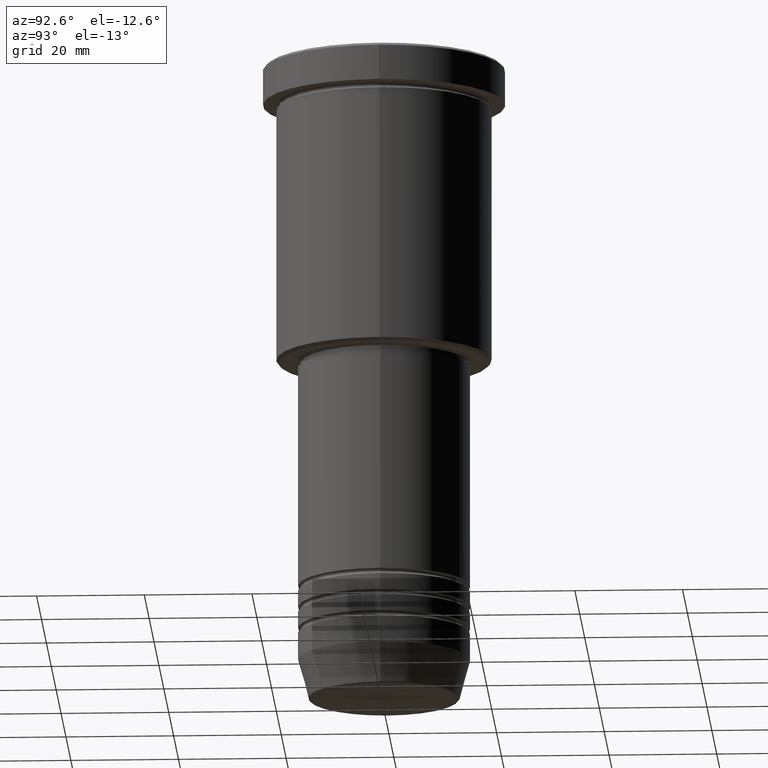
[diagram: clean part render]
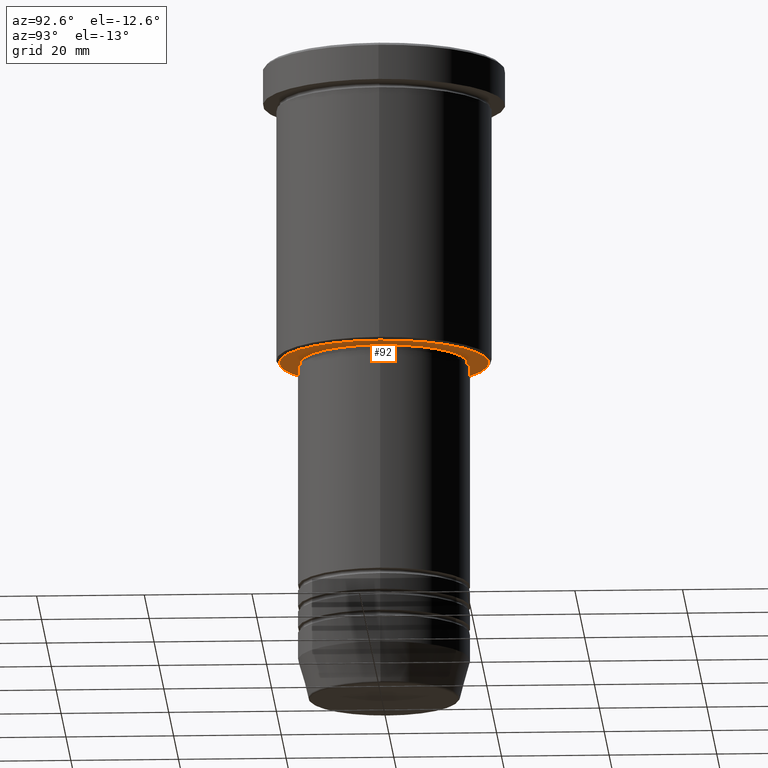
[diagram: same view with one face highlighted and labeled with its STEP entity id]
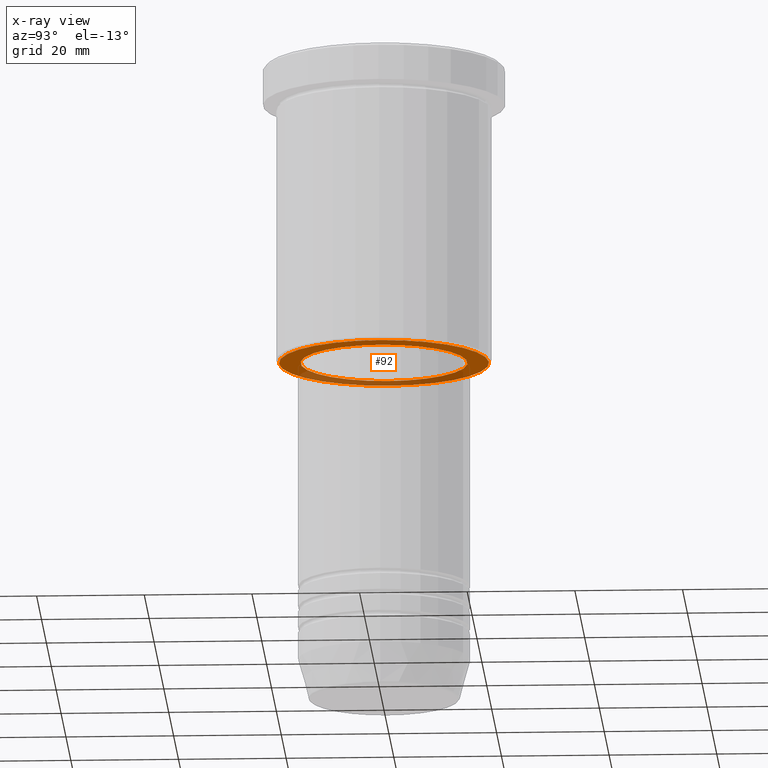
[diagram: x-ray of the same camera — body ghosted, the highlighted face saturated]
A machine part, auxiliary view. The second image highlights one B-rep face of the part: STEP entity #92.
The next image is the same camera in x-ray: the body ghosted, the highlighted face saturated — about 33% of this face is hidden behind the body in this view.
In plain terms, the highlighted planar face has unit normal (0, 0, -1).
Its self-contained STEP definition (entity closure, byte-faithful):
#23 = EDGE_LOOP ( 'NONE', ( #900, #994 ) ) ;
#33 = VERTEX_POINT ( 'NONE', #717 ) ;
#71 = DIRECTION ( 'NONE',  ( 0.000000000000000000, 0.000000000000000000, -1.000000000000000000 ) ) ;
#75 = AXIS2_PLACEMENT_3D ( 'NONE', #1021, #394, #848 ) ;
#83 = CARTESIAN_POINT ( 'NONE',  ( 0.000000000000000000, 20.00000000000000355, -56.00000000000000711 ) ) ;
#92 = ADVANCED_FACE ( 'NONE', ( #489, #568 ), #1124, .T. ) ;
#95 = AXIS2_PLACEMENT_3D ( 'NONE', #247, #1047, #695 ) ;
#112 = DIRECTION ( 'NONE',  ( -1.000000000000000000, 0.000000000000000000, -0.000000000000000000 ) ) ;
#121 = CARTESIAN_POINT ( 'NONE',  ( -19.50000000000000355, 2.418677428316023120E-15, -56.00000000000000711 ) ) ;
#149 = CIRCLE ( 'NONE', #75, 15.50000000000000000 ) ;
#164 = DIRECTION ( 'NONE',  ( -1.000000000000000000, 0.000000000000000000, 0.000000000000000000 ) ) ;
#172 = ORIENTED_EDGE ( 'NONE', *, *, #731, .T. ) ;
#188 = CARTESIAN_POINT ( 'NONE',  ( -15.50000000000000000, 1.898202538678397557E-15, -56.00000000000000711 ) ) ;
#215 = EDGE_LOOP ( 'NONE', ( #172, #613 ) ) ;
#230 = EDGE_CURVE ( 'NONE', #806, #33, #1008, .T. ) ;
#237 = EDGE_CURVE ( 'NONE', #959, #405, #149, .T. ) ;
#247 = CARTESIAN_POINT ( 'NONE',  ( 0.000000000000000000, 0.000000000000000000, -56.00000000000000711 ) ) ;
#365 = AXIS2_PLACEMENT_3D ( 'NONE', #83, #1017, #112 ) ;
#394 = DIRECTION ( 'NONE',  ( -0.000000000000000000, -0.000000000000000000, 1.000000000000000000 ) ) ;
#405 = VERTEX_POINT ( 'NONE', #188 ) ;
#489 = FACE_OUTER_BOUND ( 'NONE', #215, .T. ) ;
#568 = FACE_BOUND ( 'NONE', #23, .T. ) ;
#604 = EDGE_CURVE ( 'NONE', #405, #959, #826, .T. ) ;
#613 = ORIENTED_EDGE ( 'NONE', *, *, #230, .T. ) ;
#659 = CARTESIAN_POINT ( 'NONE',  ( 0.000000000000000000, 0.000000000000000000, -56.00000000000000711 ) ) ;
#695 = DIRECTION ( 'NONE',  ( 1.000000000000000000, 0.000000000000000000, 0.000000000000000000 ) ) ;
#717 = CARTESIAN_POINT ( 'NONE',  ( 19.50000000000000355, 0.000000000000000000, -56.00000000000000711 ) ) ;
#731 = EDGE_CURVE ( 'NONE', #33, #806, #868, .T. ) ;
#806 = VERTEX_POINT ( 'NONE', #121 ) ;
#821 = DIRECTION ( 'NONE',  ( 0.000000000000000000, 0.000000000000000000, -1.000000000000000000 ) ) ;
#826 = CIRCLE ( 'NONE', #95, 15.50000000000000000 ) ;
#848 = DIRECTION ( 'NONE',  ( 1.000000000000000000, 0.000000000000000000, 0.000000000000000000 ) ) ;
#868 = CIRCLE ( 'NONE', #918, 19.50000000000000355 ) ;
#895 = CARTESIAN_POINT ( 'NONE',  ( 0.000000000000000000, 0.000000000000000000, -56.00000000000000711 ) ) ;
#900 = ORIENTED_EDGE ( 'NONE', *, *, #237, .T. ) ;
#918 = AXIS2_PLACEMENT_3D ( 'NONE', #895, #71, #164 ) ;
#959 = VERTEX_POINT ( 'NONE', #1128 ) ;
#994 = ORIENTED_EDGE ( 'NONE', *, *, #604, .T. ) ;
#1008 = CIRCLE ( 'NONE', #1159, 19.50000000000000355 ) ;
#1017 = DIRECTION ( 'NONE',  ( 0.000000000000000000, 0.000000000000000000, -1.000000000000000000 ) ) ;
#1021 = CARTESIAN_POINT ( 'NONE',  ( 0.000000000000000000, 0.000000000000000000, -56.00000000000000711 ) ) ;
#1047 = DIRECTION ( 'NONE',  ( -0.000000000000000000, -0.000000000000000000, 1.000000000000000000 ) ) ;
#1124 = PLANE ( 'NONE',  #365 ) ;
#1128 = CARTESIAN_POINT ( 'NONE',  ( 15.50000000000000000, 0.000000000000000000, -56.00000000000000711 ) ) ;
#1159 = AXIS2_PLACEMENT_3D ( 'NONE', #659, #821, #1178 ) ;
#1178 = DIRECTION ( 'NONE',  ( -1.000000000000000000, 0.000000000000000000, 0.000000000000000000 ) ) ;